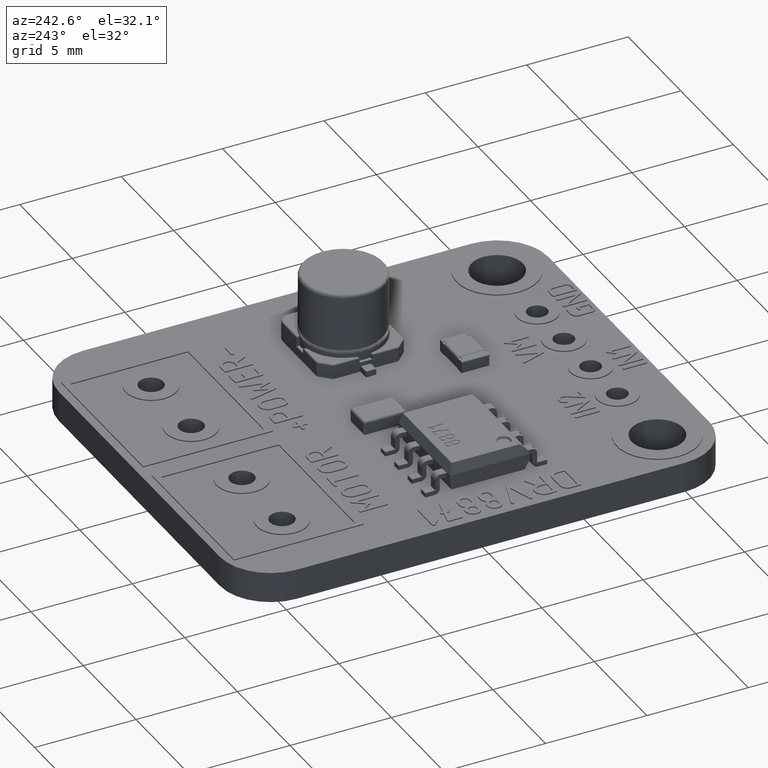
[diagram: clean part render]
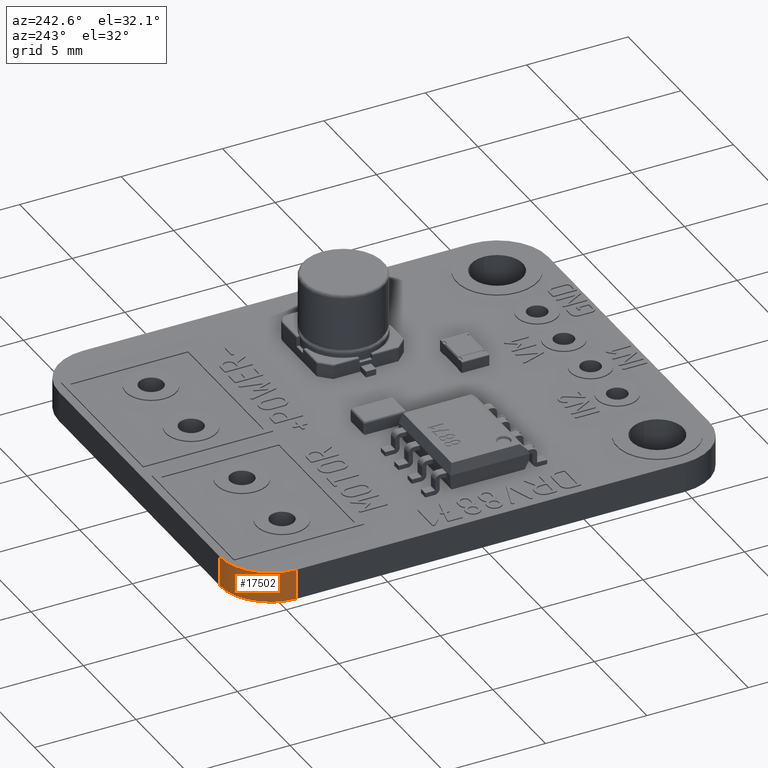
[diagram: same view with one face highlighted and labeled with its STEP entity id]
A machine part, auxiliary view. The second image highlights one B-rep face of the part: STEP entity #17502.
In plain terms, the highlighted cylindrical surface (partial cylindrical patch) has radius 2.5 mm, axis along (0, 0, 1).
Its self-contained STEP definition (entity closure, byte-faithful):
#149=CYLINDRICAL_SURFACE('',#18349,2.5);
#257=CIRCLE('',#18211,2.5);
#320=CIRCLE('',#18339,2.5);
#1663=FACE_OUTER_BOUND('',#2704,.T.);
#2704=EDGE_LOOP('',(#13922,#13923,#13924,#13925));
#4005=LINE('',#28085,#5550);
#4006=LINE('',#28087,#5551);
#5550=VECTOR('',#20550,1.5);
#5551=VECTOR('',#20553,1.5);
#7771=VERTEX_POINT('',#27829);
#7772=VERTEX_POINT('',#27831);
#7837=VERTEX_POINT('',#28057);
#7838=VERTEX_POINT('',#28058);
#9855=EDGE_CURVE('',#7772,#7771,#257,.T.);
#9951=EDGE_CURVE('',#7837,#7838,#320,.T.);
#9965=EDGE_CURVE('',#7772,#7838,#4005,.T.);
#9966=EDGE_CURVE('',#7837,#7771,#4006,.T.);
#13922=ORIENTED_EDGE('',*,*,#9855,.T.);
#13923=ORIENTED_EDGE('',*,*,#9966,.F.);
#13924=ORIENTED_EDGE('',*,*,#9951,.T.);
#13925=ORIENTED_EDGE('',*,*,#9965,.F.);
#17502=ADVANCED_FACE('',(#1663),#149,.T.);
#18211=AXIS2_PLACEMENT_3D('',#27832,#20231,#20232);
#18339=AXIS2_PLACEMENT_3D('',#28059,#20520,#20521);
#18349=AXIS2_PLACEMENT_3D('',#28086,#20551,#20552);
#20231=DIRECTION('center_axis',(0.,0.,-1.));
#20232=DIRECTION('ref_axis',(0.,-1.,0.));
#20520=DIRECTION('center_axis',(0.,0.,1.));
#20521=DIRECTION('ref_axis',(0.,-1.,0.));
#20550=DIRECTION('',(0.,0.,-1.));
#20551=DIRECTION('center_axis',(0.,0.,1.));
#20552=DIRECTION('ref_axis',(0.,-1.,0.));
#20553=DIRECTION('',(0.,0.,1.));
#27829=CARTESIAN_POINT('',(-7.66,12.065,0.75));
#27831=CARTESIAN_POINT('',(-10.16,9.565,0.75));
#27832=CARTESIAN_POINT('Origin',(-7.66,9.565,0.75));
#28057=CARTESIAN_POINT('',(-7.66,12.065,-0.75));
#28058=CARTESIAN_POINT('',(-10.16,9.565,-0.75));
#28059=CARTESIAN_POINT('Origin',(-7.66,9.565,-0.75));
#28085=CARTESIAN_POINT('',(-10.16,9.565,0.75));
#28086=CARTESIAN_POINT('Origin',(-7.66,9.565,0.));
#28087=CARTESIAN_POINT('',(-7.66,12.065,-0.75));